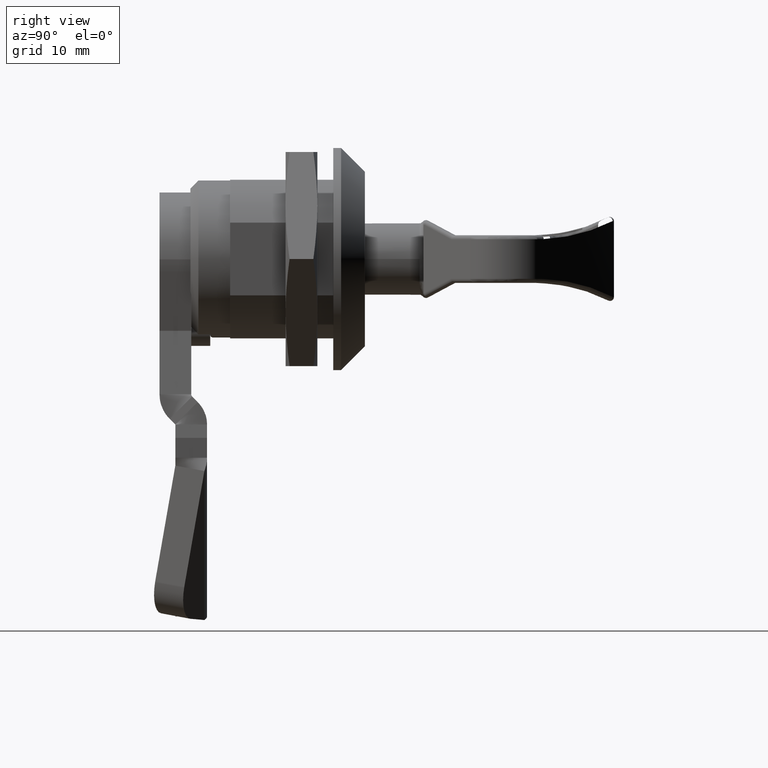
[diagram: clean part render]
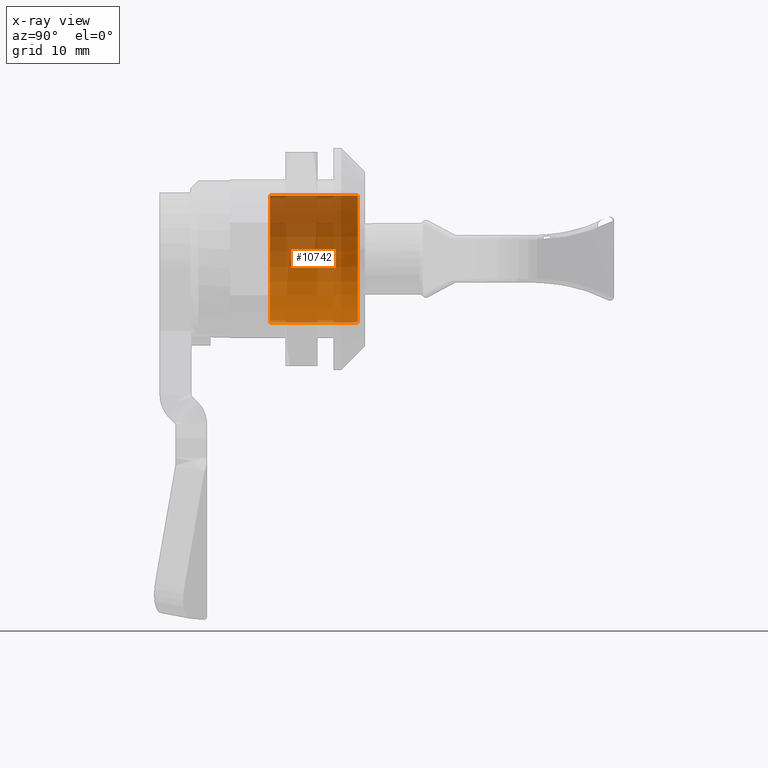
[diagram: x-ray — body ghosted, one internal face saturated and labeled with its STEP entity id]
A machine part, right view, then the same camera in x-ray: the body is ghosted and one INTERNAL B-rep face — a face not visible from any outside direction — is saturated and labeled: STEP entity #10742.
In plain terms, the highlighted cylindrical surface (partial cylindrical patch) has radius 8 mm, axis along (-0, -1, 0).
Its self-contained STEP definition (entity closure, byte-faithful):
#648 = LINE ( 'NONE', #3555, #18380 ) ;
#914 = CARTESIAN_POINT ( 'NONE',  ( 10.04383272429405594, 24.99999999999991118, 0.5500000000001059597 ) ) ;
#1033 = EDGE_CURVE ( 'NONE', #14508, #18539, #2030, .T. ) ;
#1051 = EDGE_CURVE ( 'NONE', #14508, #16364, #5418, .T. ) ;
#1327 = ORIENTED_EDGE ( 'NONE', *, *, #1033, .F. ) ;
#2030 = LINE ( 'NONE', #16924, #3881 ) ;
#2963 = EDGE_LOOP ( 'NONE', ( #3005, #13620, #15420, #1327 ) ) ;
#3005 = ORIENTED_EDGE ( 'NONE', *, *, #1051, .T. ) ;
#3555 = CARTESIAN_POINT ( 'NONE',  ( 10.04383272429405594, 26.55000000000029559, 0.5499999999995283106 ) ) ;
#3667 = DIRECTION ( 'NONE',  ( -6.924554986169595667E-22, -1.000000000000000000, 3.314018617906139709E-22 ) ) ;
#3881 = VECTOR ( 'NONE', #3667, 1000.000000000000000 ) ;
#4222 = AXIS2_PLACEMENT_3D ( 'NONE', #15265, #16709, #4706 ) ;
#4706 = DIRECTION ( 'NONE',  ( 4.119968255444901072E-15, 0.0000000000000000000, 1.000000000000000000 ) ) ;
#5290 = DIRECTION ( 'NONE',  ( 4.119968255444901072E-15, 0.0000000000000000000, 1.000000000000000000 ) ) ;
#5360 = VERTEX_POINT ( 'NONE', #16811 ) ;
#5418 = CIRCLE ( 'NONE', #9746, 8.000000000000030198 ) ;
#6454 = FACE_OUTER_BOUND ( 'NONE', #2963, .T. ) ;
#9076 = EDGE_CURVE ( 'NONE', #5360, #18539, #12566, .T. ) ;
#9746 = AXIS2_PLACEMENT_3D ( 'NONE', #15473, #10736, #15380 ) ;
#10736 = DIRECTION ( 'NONE',  ( -6.924554986169595667E-22, -1.000000000000000000, 3.314018617906139709E-22 ) ) ;
#10742 = ADVANCED_FACE ( 'NONE', ( #6454 ), #14127, .T. ) ;
#12076 = EDGE_CURVE ( 'NONE', #16364, #5360, #648, .T. ) ;
#12380 = DIRECTION ( 'NONE',  ( -6.924554986169595667E-22, -1.000000000000000000, 3.314018617906139709E-22 ) ) ;
#12566 = CIRCLE ( 'NONE', #4222, 8.000000000000030198 ) ;
#12746 = DIRECTION ( 'NONE',  ( -6.924554986169595667E-22, -1.000000000000000000, 3.314018617906139709E-22 ) ) ;
#13620 = ORIENTED_EDGE ( 'NONE', *, *, #12076, .T. ) ;
#14127 = CYLINDRICAL_SURFACE ( 'NONE', #16522, 8.000000000000030198 ) ;
#14508 = VERTEX_POINT ( 'NONE', #16139 ) ;
#15265 = CARTESIAN_POINT ( 'NONE',  ( 10.04383272429409146, 13.90000000000002345, 8.549999999999444711 ) ) ;
#15380 = DIRECTION ( 'NONE',  ( 4.119968255444901072E-15, 0.0000000000000000000, 1.000000000000000000 ) ) ;
#15420 = ORIENTED_EDGE ( 'NONE', *, *, #9076, .T. ) ;
#15470 = CARTESIAN_POINT ( 'NONE',  ( 10.04383272429409146, 26.55000000000029559, 8.549999999999556621 ) ) ;
#15473 = CARTESIAN_POINT ( 'NONE',  ( 10.04383272429409146, 24.99999999999991118, 8.550000000000110845 ) ) ;
#16139 = CARTESIAN_POINT ( 'NONE',  ( 10.04383272429412344, 24.99999999999991118, 16.55000000000011795 ) ) ;
#16364 = VERTEX_POINT ( 'NONE', #914 ) ;
#16522 = AXIS2_PLACEMENT_3D ( 'NONE', #15470, #12380, #5290 ) ;
#16709 = DIRECTION ( 'NONE',  ( 6.924554986169595667E-22, 1.000000000000000000, -3.314018617906139709E-22 ) ) ;
#16811 = CARTESIAN_POINT ( 'NONE',  ( 10.04383272429405594, 13.90000000000002345, 0.5499999999994450439 ) ) ;
#16924 = CARTESIAN_POINT ( 'NONE',  ( 10.04383272429412344, 26.55000000000029559, 16.54999999999958504 ) ) ;
#18380 = VECTOR ( 'NONE', #12746, 1000.000000000000000 ) ;
#18539 = VERTEX_POINT ( 'NONE', #19012 ) ;
#19012 = CARTESIAN_POINT ( 'NONE',  ( 10.04383272429412344, 13.90000000000002345, 16.54999999999947491 ) ) ;